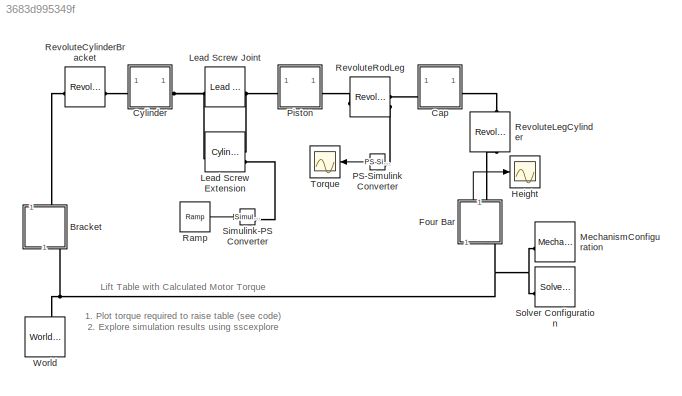
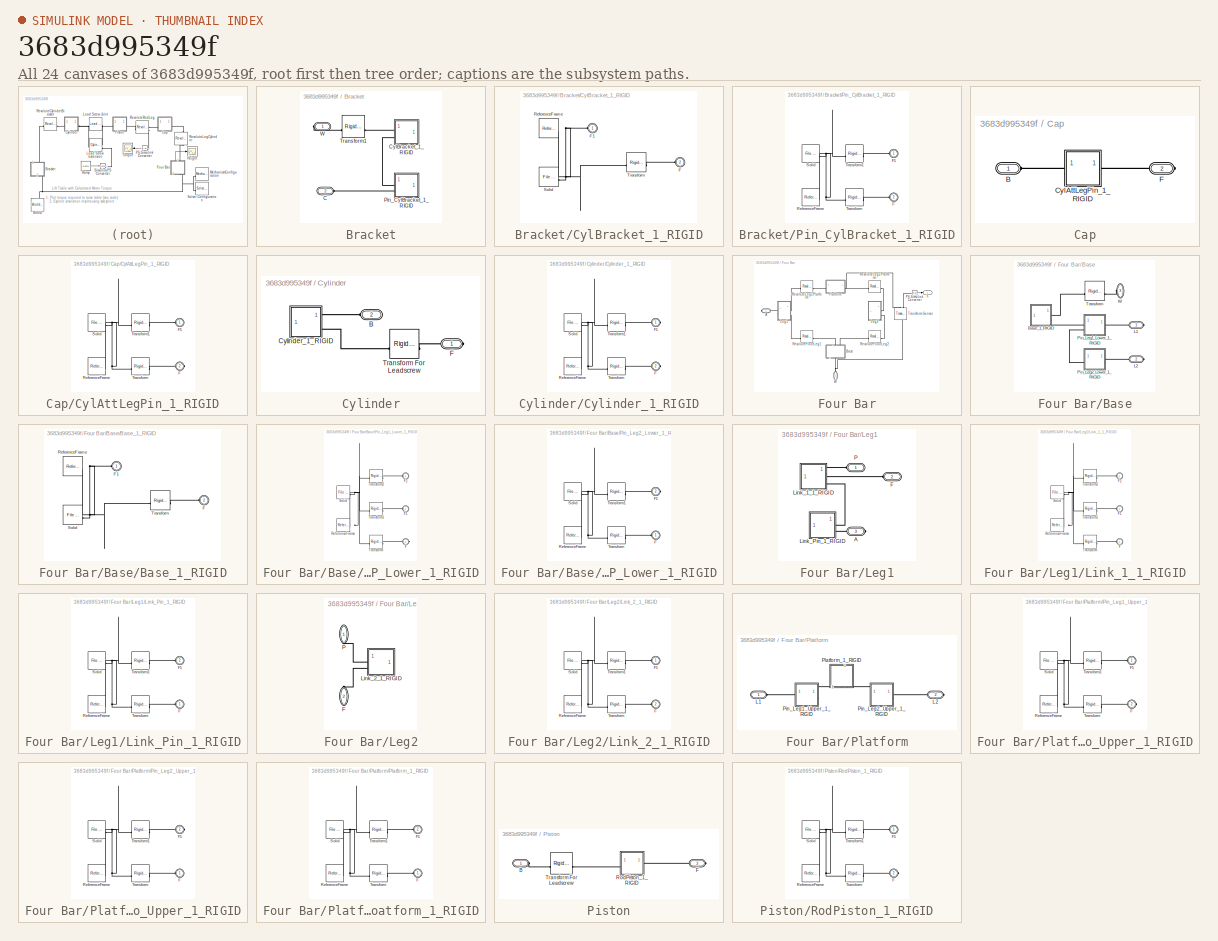
[diagram: thumbnail index - all 24 canvases of the model, root first then tree order]
MODEL slx_3683d995349f
KIND model
CONFIG AbsTol = auto
CONFIG EnableMultiTasking = off
CONFIG FixedStep = auto
CONFIG MaxStep = 0.01
CONFIG MinStep = auto
CONFIG RelTol = 1e-3
CONFIG SampleTimeConstraint = Unconstrained
CONFIG SolverName = ode15s
CONFIG StartTime = 0.0
CONFIG StopTime = 10
WORKSPACE source: external: MATLAB File  (data not in archive)
BLOCK [SubSystem] Bracket
  NameLocation = right
BLOCK [PMIOPort] Bracket/C
  Port = 2
  Side = Left
BLOCK [SubSystem] Bracket/CylBracket_1_RIGID
BLOCK [PMIOPort] Bracket/CylBracket_1_RIGID/F
  Port = 2
  Side = Left
BLOCK [PMIOPort] Bracket/CylBracket_1_RIGID/F1
  Side = Left
BLOCK [Reference] Bracket/CylBracket_1_RIGID/ReferenceFrame  REF=sm_lib/Frames and
Transforms/Reference
Frame
  SourceBlock = sm_lib/Frames and\nTransforms/Reference\nFrame
  SourceType = Reference\nFrame
BLOCK [Reference] Bracket/CylBracket_1_RIGID/Solid  REF=sm_lib/Body Elements/File Solid
  SourceBlock = sm_lib/Body Elements/File Solid
  SourceType = File Solid
BLOCK [Reference] Bracket/CylBracket_1_RIGID/Transform  REF=sm_lib/Frames and
Transforms/Rigid
Transform
  SourceBlock = sm_lib/Frames and\nTransforms/Rigid\nTransform
  SourceType = Rigid\nTransform
BLOCK [SubSystem] Bracket/Pin_CylBracket_1_RIGID
BLOCK [PMIOPort] Bracket/Pin_CylBracket_1_RIGID/F
  Port = 2
  Side = Left
BLOCK [PMIOPort] Bracket/Pin_CylBracket_1_RIGID/F1
  Side = Left
BLOCK [Reference] Bracket/Pin_CylBracket_1_RIGID/ReferenceFrame  REF=sm_lib/Frames and
Transforms/Reference
Frame
  SourceBlock = sm_lib/Frames and\nTransforms/Reference\nFrame
  SourceType = Reference\nFrame
BLOCK [Reference] Bracket/Pin_CylBracket_1_RIGID/Solid  REF=sm_lib/Body Elements/File Solid
  SourceBlock = sm_lib/Body Elements/File Solid
  SourceType = File Solid
BLOCK [Reference] Bracket/Pin_CylBracket_1_RIGID/Transform  REF=sm_lib/Frames and
Transforms/Rigid
Transform
  SourceBlock = sm_lib/Frames and\nTransforms/Rigid\nTransform
  SourceType = Rigid\nTransform
BLOCK [Reference] Bracket/Pin_CylBracket_1_RIGID/Transform1  REF=sm_lib/Frames and
Transforms/Rigid
Transform
  SourceBlock = sm_lib/Frames and\nTransforms/Rigid\nTransform
  SourceType = Rigid\nTransform
BLOCK [Reference] Bracket/Transform1  REF=sm_lib/Frames and
Transforms/Rigid
Transform
  NameLocation = top
  SourceBlock = sm_lib/Frames and\nTransforms/Rigid\nTransform
  SourceType = Rigid\nTransform
BLOCK [PMIOPort] Bracket/W
  NameLocation = top
  Side = Right
BLOCK [SubSystem] Cap
BLOCK [PMIOPort] Cap/B
  Side = Left
BLOCK [SubSystem] Cap/CylAttLegPin_1_RIGID
BLOCK [PMIOPort] Cap/CylAttLegPin_1_RIGID/F
  Port = 2
  Side = Right
BLOCK [PMIOPort] Cap/CylAttLegPin_1_RIGID/F1
  Side = Left
BLOCK [Reference] Cap/CylAttLegPin_1_RIGID/ReferenceFrame  REF=sm_lib/Frames and
Transforms/Reference
Frame
  SourceBlock = sm_lib/Frames and\nTransforms/Reference\nFrame
  SourceType = Reference\nFrame
BLOCK [Reference] Cap/CylAttLegPin_1_RIGID/Solid  REF=sm_lib/Body Elements/File Solid
  SourceBlock = sm_lib/Body Elements/File Solid
  SourceType = File Solid
BLOCK [Reference] Cap/CylAttLegPin_1_RIGID/Transform  REF=sm_lib/Frames and
Transforms/Rigid
Transform
  SourceBlock = sm_lib/Frames and\nTransforms/Rigid\nTransform
  SourceType = Rigid\nTransform
BLOCK [Reference] Cap/CylAttLegPin_1_RIGID/Transform1  REF=sm_lib/Frames and
Transforms/Rigid
Transform
  SourceBlock = sm_lib/Frames and\nTransforms/Rigid\nTransform
  SourceType = Rigid\nTransform
BLOCK [PMIOPort] Cap/F
  Port = 2
  Side = Right
BLOCK [SubSystem] Cylinder
BLOCK [PMIOPort] Cylinder/B
  NameLocation = top
  Port = 2
  Side = Left
BLOCK [SubSystem] Cylinder/Cylinder_1_RIGID
BLOCK [PMIOPort] Cylinder/Cylinder_1_RIGID/F
  Port = 2
  Side = Right
BLOCK [PMIOPort] Cylinder/Cylinder_1_RIGID/F1
  Side = Right
BLOCK [Reference] Cylinder/Cylinder_1_RIGID/ReferenceFrame  REF=sm_lib/Frames and
Transforms/Reference
Frame
  SourceBlock = sm_lib/Frames and\nTransforms/Reference\nFrame
  SourceType = Reference\nFrame
BLOCK [Reference] Cylinder/Cylinder_1_RIGID/Solid  REF=sm_lib/Body Elements/File Solid
  SourceBlock = sm_lib/Body Elements/File Solid
  SourceType = File Solid
BLOCK [Reference] Cylinder/Cylinder_1_RIGID/Transform  REF=sm_lib/Frames and
Transforms/Rigid
Transform
  SourceBlock = sm_lib/Frames and\nTransforms/Rigid\nTransform
  SourceType = Rigid\nTransform
BLOCK [Reference] Cylinder/Cylinder_1_RIGID/Transform1  REF=sm_lib/Frames and
Transforms/Rigid
Transform
  SourceBlock = sm_lib/Frames and\nTransforms/Rigid\nTransform
  SourceType = Rigid\nTransform
BLOCK [PMIOPort] Cylinder/F
  Side = Right
BLOCK [Reference] Cylinder/Transform For Leadscrew  REF=sm_lib/Frames and
Transforms/Rigid
Transform
  SourceBlock = sm_lib/Frames and\nTransforms/Rigid\nTransform
  SourceType = Rigid\nTransform
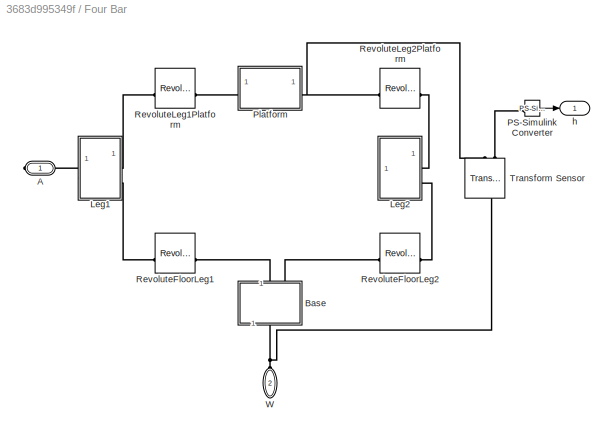
BLOCK [SubSystem] Four Bar
  NameLocation = left
BLOCK [PMIOPort] Four Bar/A
  Side = Right
BLOCK [SubSystem] Four Bar/Base
  NameLocation = right
BLOCK [SubSystem] Four Bar/Base/Base_1_RIGID
BLOCK [PMIOPort] Four Bar/Base/Base_1_RIGID/F
  Port = 2
  Side = Left
BLOCK [PMIOPort] Four Bar/Base/Base_1_RIGID/F1
  Side = Left
BLOCK [Reference] Four Bar/Base/Base_1_RIGID/ReferenceFrame  REF=sm_lib/Frames and
Transforms/Reference
Frame
  SourceBlock = sm_lib/Frames and\nTransforms/Reference\nFrame
  SourceType = Reference\nFrame
BLOCK [Reference] Four Bar/Base/Base_1_RIGID/Solid  REF=sm_lib/Body Elements/File Solid
  SourceBlock = sm_lib/Body Elements/File Solid
  SourceType = File Solid
BLOCK [Reference] Four Bar/Base/Base_1_RIGID/Transform  REF=sm_lib/Frames and
Transforms/Rigid
Transform
  SourceBlock = sm_lib/Frames and\nTransforms/Rigid\nTransform
  SourceType = Rigid\nTransform
BLOCK [PMIOPort] Four Bar/Base/L1
  Side = Right
BLOCK [PMIOPort] Four Bar/Base/L2
  Port = 2
  Side = Right
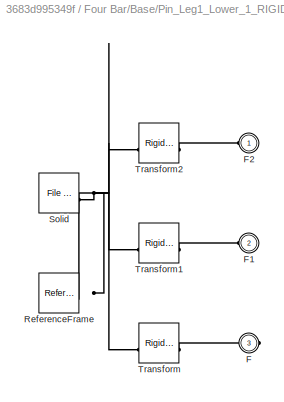
BLOCK [SubSystem] Four Bar/Base/Pin_Leg1_Lower_1_RIGID
BLOCK [PMIOPort] Four Bar/Base/Pin_Leg1_Lower_1_RIGID/F
  Port = 3
  Side = Right
BLOCK [PMIOPort] Four Bar/Base/Pin_Leg1_Lower_1_RIGID/F1
  Port = 2
  Side = Left
BLOCK [PMIOPort] Four Bar/Base/Pin_Leg1_Lower_1_RIGID/F2
  Side = Left
BLOCK [Reference] Four Bar/Base/Pin_Leg1_Lower_1_RIGID/ReferenceFrame  REF=sm_lib/Frames and
Transforms/Reference
Frame
  SourceBlock = sm_lib/Frames and\nTransforms/Reference\nFrame
  SourceType = Reference\nFrame
BLOCK [Reference] Four Bar/Base/Pin_Leg1_Lower_1_RIGID/Solid  REF=sm_lib/Body Elements/File Solid
  SourceBlock = sm_lib/Body Elements/File Solid
  SourceType = File Solid
BLOCK [Reference] Four Bar/Base/Pin_Leg1_Lower_1_RIGID/Transform  REF=sm_lib/Frames and
Transforms/Rigid
Transform
  SourceBlock = sm_lib/Frames and\nTransforms/Rigid\nTransform
  SourceType = Rigid\nTransform
BLOCK [Reference] Four Bar/Base/Pin_Leg1_Lower_1_RIGID/Transform1  REF=sm_lib/Frames and
Transforms/Rigid
Transform
  SourceBlock = sm_lib/Frames and\nTransforms/Rigid\nTransform
  SourceType = Rigid\nTransform
BLOCK [Reference] Four Bar/Base/Pin_Leg1_Lower_1_RIGID/Transform2  REF=sm_lib/Frames and
Transforms/Rigid
Transform
  SourceBlock = sm_lib/Frames and\nTransforms/Rigid\nTransform
  SourceType = Rigid\nTransform
BLOCK [SubSystem] Four Bar/Base/Pin_Leg2_Lower_1_RIGID
BLOCK [PMIOPort] Four Bar/Base/Pin_Leg2_Lower_1_RIGID/F
  Side = Left
BLOCK [PMIOPort] Four Bar/Base/Pin_Leg2_Lower_1_RIGID/F1
  Port = 2
  Side = Right
BLOCK [Reference] Four Bar/Base/Pin_Leg2_Lower_1_RIGID/ReferenceFrame  REF=sm_lib/Frames and
Transforms/Reference
Frame
  SourceBlock = sm_lib/Frames and\nTransforms/Reference\nFrame
  SourceType = Reference\nFrame
BLOCK [Reference] Four Bar/Base/Pin_Leg2_Lower_1_RIGID/Solid  REF=sm_lib/Body Elements/File Solid
  SourceBlock = sm_lib/Body Elements/File Solid
  SourceType = File Solid
BLOCK [Reference] Four Bar/Base/Pin_Leg2_Lower_1_RIGID/Transform  REF=sm_lib/Frames and
Transforms/Rigid
Transform
  SourceBlock = sm_lib/Frames and\nTransforms/Rigid\nTransform
  SourceType = Rigid\nTransform
BLOCK [Reference] Four Bar/Base/Pin_Leg2_Lower_1_RIGID/Transform1  REF=sm_lib/Frames and
Transforms/Rigid
Transform
  SourceBlock = sm_lib/Frames and\nTransforms/Rigid\nTransform
  SourceType = Rigid\nTransform
BLOCK [Reference] Four Bar/Base/Transform  REF=sm_lib/Frames and
Transforms/Rigid
Transform
  SourceBlock = sm_lib/Frames and\nTransforms/Rigid\nTransform
  SourceType = Rigid\nTransform
BLOCK [PMIOPort] Four Bar/Base/W
  NameLocation = top
  Port = 3
  Side = Left
BLOCK [SubSystem] Four Bar/Leg1
BLOCK [PMIOPort] Four Bar/Leg1/A
  Port = 3
  Side = Right
BLOCK [PMIOPort] Four Bar/Leg1/F
  NameLocation = top
  Port = 2
  Side = Left
BLOCK [SubSystem] Four Bar/Leg1/Link_1_1_RIGID
BLOCK [PMIOPort] Four Bar/Leg1/Link_1_1_RIGID/F
  Port = 3
  Side = Left
BLOCK [PMIOPort] Four Bar/Leg1/Link_1_1_RIGID/F1
  Port = 2
  Side = Left
BLOCK [PMIOPort] Four Bar/Leg1/Link_1_1_RIGID/F2
  Side = Left
BLOCK [Reference] Four Bar/Leg1/Link_1_1_RIGID/ReferenceFrame  REF=sm_lib/Frames and
Transforms/Reference
Frame
  SourceBlock = sm_lib/Frames and\nTransforms/Reference\nFrame
  SourceType = Reference\nFrame
BLOCK [Reference] Four Bar/Leg1/Link_1_1_RIGID/Solid  REF=sm_lib/Body Elements/File Solid
  SourceBlock = sm_lib/Body Elements/File Solid
  SourceType = File Solid
BLOCK [Reference] Four Bar/Leg1/Link_1_1_RIGID/Transform  REF=sm_lib/Frames and
Transforms/Rigid
Transform
  SourceBlock = sm_lib/Frames and\nTransforms/Rigid\nTransform
  SourceType = Rigid\nTransform
BLOCK [Reference] Four Bar/Leg1/Link_1_1_RIGID/Transform1  REF=sm_lib/Frames and
Transforms/Rigid
Transform
  SourceBlock = sm_lib/Frames and\nTransforms/Rigid\nTransform
  SourceType = Rigid\nTransform
BLOCK [Reference] Four Bar/Leg1/Link_1_1_RIGID/Transform2  REF=sm_lib/Frames and
Transforms/Rigid
Transform
  SourceBlock = sm_lib/Frames and\nTransforms/Rigid\nTransform
  SourceType = Rigid\nTransform
BLOCK [SubSystem] Four Bar/Leg1/Link_Pin_1_RIGID
  NameLocation = top
BLOCK [PMIOPort] Four Bar/Leg1/Link_Pin_1_RIGID/F
  Side = Left
BLOCK [PMIOPort] Four Bar/Leg1/Link_Pin_1_RIGID/F1
  Port = 2
  Side = Left
BLOCK [Reference] Four Bar/Leg1/Link_Pin_1_RIGID/ReferenceFrame  REF=sm_lib/Frames and
Transforms/Reference
Frame
  SourceBlock = sm_lib/Frames and\nTransforms/Reference\nFrame
  SourceType = Reference\nFrame
BLOCK [Reference] Four Bar/Leg1/Link_Pin_1_RIGID/Solid  REF=sm_lib/Body Elements/File Solid
  SourceBlock = sm_lib/Body Elements/File Solid
  SourceType = File Solid
BLOCK [Reference] Four Bar/Leg1/Link_Pin_1_RIGID/Transform  REF=sm_lib/Frames and
Transforms/Rigid
Transform
  SourceBlock = sm_lib/Frames and\nTransforms/Rigid\nTransform
  SourceType = Rigid\nTransform
BLOCK [Reference] Four Bar/Leg1/Link_Pin_1_RIGID/Transform1  REF=sm_lib/Frames and
Transforms/Rigid
Transform
  SourceBlock = sm_lib/Frames and\nTransforms/Rigid\nTransform
  SourceType = Rigid\nTransform
BLOCK [PMIOPort] Four Bar/Leg1/P
  NameLocation = top
  Side = Left
BLOCK [SubSystem] Four Bar/Leg2
BLOCK [PMIOPort] Four Bar/Leg2/F
  NameLocation = right
  Port = 2
  Side = Left
BLOCK [SubSystem] Four Bar/Leg2/Link_2_1_RIGID
BLOCK [PMIOPort] Four Bar/Leg2/Link_2_1_RIGID/F
  Port = 2
  Side = Left
BLOCK [PMIOPort] Four Bar/Leg2/Link_2_1_RIGID/F1
  Side = Left
BLOCK [Reference] Four Bar/Leg2/Link_2_1_RIGID/ReferenceFrame  REF=sm_lib/Frames and
Transforms/Reference
Frame
  SourceBlock = sm_lib/Frames and\nTransforms/Reference\nFrame
  SourceType = Reference\nFrame
BLOCK [Reference] Four Bar/Leg2/Link_2_1_RIGID/Solid  REF=sm_lib/Body Elements/File Solid
  SourceBlock = sm_lib/Body Elements/File Solid
  SourceType = File Solid
BLOCK [Reference] Four Bar/Leg2/Link_2_1_RIGID/Transform  REF=sm_lib/Frames and
Transforms/Rigid
Transform
  SourceBlock = sm_lib/Frames and\nTransforms/Rigid\nTransform
  SourceType = Rigid\nTransform
BLOCK [Reference] Four Bar/Leg2/Link_2_1_RIGID/Transform1  REF=sm_lib/Frames and
Transforms/Rigid
Transform
  SourceBlock = sm_lib/Frames and\nTransforms/Rigid\nTransform
  SourceType = Rigid\nTransform
BLOCK [PMIOPort] Four Bar/Leg2/P
  NameLocation = right
  Side = Left
BLOCK [Reference] Four Bar/PS-Simulink Converter  REF=nesl_utility/PS-Simulink
Converter
  NameLocation = top
  SourceBlock = nesl_utility/PS-Simulink\nConverter
  SourceType = PS-Simulink\nConverter
BLOCK [SubSystem] Four Bar/Platform
BLOCK [PMIOPort] Four Bar/Platform/L1
  Side = Left
BLOCK [PMIOPort] Four Bar/Platform/L2
  Port = 2
  Side = Right
BLOCK [SubSystem] Four Bar/Platform/Pin_Leg1_Upper_1_RIGID
BLOCK [PMIOPort] Four Bar/Platform/Pin_Leg1_Upper_1_RIGID/F
  Port = 2
  Side = Right
BLOCK [PMIOPort] Four Bar/Platform/Pin_Leg1_Upper_1_RIGID/F1
  Side = Left
BLOCK [Reference] Four Bar/Platform/Pin_Leg1_Upper_1_RIGID/ReferenceFrame  REF=sm_lib/Frames and
Transforms/Reference
Frame
  SourceBlock = sm_lib/Frames and\nTransforms/Reference\nFrame
  SourceType = Reference\nFrame
BLOCK [Reference] Four Bar/Platform/Pin_Leg1_Upper_1_RIGID/Solid  REF=sm_lib/Body Elements/File Solid
  SourceBlock = sm_lib/Body Elements/File Solid
  SourceType = File Solid
BLOCK [Reference] Four Bar/Platform/Pin_Leg1_Upper_1_RIGID/Transform  REF=sm_lib/Frames and
Transforms/Rigid
Transform
  SourceBlock = sm_lib/Frames and\nTransforms/Rigid\nTransform
  SourceType = Rigid\nTransform
BLOCK [Reference] Four Bar/Platform/Pin_Leg1_Upper_1_RIGID/Transform1  REF=sm_lib/Frames and
Transforms/Rigid
Transform
  SourceBlock = sm_lib/Frames and\nTransforms/Rigid\nTransform
  SourceType = Rigid\nTransform
BLOCK [SubSystem] Four Bar/Platform/Pin_Leg2_Upper_1_RIGID
BLOCK [PMIOPort] Four Bar/Platform/Pin_Leg2_Upper_1_RIGID/F
  Side = Left
BLOCK [PMIOPort] Four Bar/Platform/Pin_Leg2_Upper_1_RIGID/F1
  Port = 2
  Side = Right
BLOCK [Reference] Four Bar/Platform/Pin_Leg2_Upper_1_RIGID/ReferenceFrame  REF=sm_lib/Frames and
Transforms/Reference
Frame
  SourceBlock = sm_lib/Frames and\nTransforms/Reference\nFrame
  SourceType = Reference\nFrame
BLOCK [Reference] Four Bar/Platform/Pin_Leg2_Upper_1_RIGID/Solid  REF=sm_lib/Body Elements/File Solid
  SourceBlock = sm_lib/Body Elements/File Solid
  SourceType = File Solid
BLOCK [Reference] Four Bar/Platform/Pin_Leg2_Upper_1_RIGID/Transform  REF=sm_lib/Frames and
Transforms/Rigid
Transform
  SourceBlock = sm_lib/Frames and\nTransforms/Rigid\nTransform
  SourceType = Rigid\nTransform
BLOCK [Reference] Four Bar/Platform/Pin_Leg2_Upper_1_RIGID/Transform1  REF=sm_lib/Frames and
Transforms/Rigid
Transform
  SourceBlock = sm_lib/Frames and\nTransforms/Rigid\nTransform
  SourceType = Rigid\nTransform
BLOCK [SubSystem] Four Bar/Platform/Platform_1_RIGID
  NameLocation = right
BLOCK [PMIOPort] Four Bar/Platform/Platform_1_RIGID/F
  Side = Left
BLOCK [PMIOPort] Four Bar/Platform/Platform_1_RIGID/F1
  Port = 2
  Side = Left
BLOCK [Reference] Four Bar/Platform/Platform_1_RIGID/ReferenceFrame  REF=sm_lib/Frames and
Transforms/Reference
Frame
  SourceBlock = sm_lib/Frames and\nTransforms/Reference\nFrame
  SourceType = Reference\nFrame
BLOCK [Reference] Four Bar/Platform/Platform_1_RIGID/Solid  REF=sm_lib/Body Elements/File Solid
  SourceBlock = sm_lib/Body Elements/File Solid
  SourceType = File Solid
BLOCK [Reference] Four Bar/Platform/Platform_1_RIGID/Transform  REF=sm_lib/Frames and
Transforms/Rigid
Transform
  SourceBlock = sm_lib/Frames and\nTransforms/Rigid\nTransform
  SourceType = Rigid\nTransform
BLOCK [Reference] Four Bar/Platform/Platform_1_RIGID/Transform1  REF=sm_lib/Frames and
Transforms/Rigid
Transform
  SourceBlock = sm_lib/Frames and\nTransforms/Rigid\nTransform
  SourceType = Rigid\nTransform
BLOCK [Reference] Four Bar/RevoluteFloorLeg1  REF=sm_lib/Joints/Revolute Joint
  SourceBlock = sm_lib/Joints/Revolute Joint
  SourceType = Revolute Joint
BLOCK [Reference] Four Bar/RevoluteFloorLeg2  REF=sm_lib/Joints/Revolute Joint
  SourceBlock = sm_lib/Joints/Revolute Joint
  SourceType = Revolute Joint
BLOCK [Reference] Four Bar/RevoluteLeg1Platform  REF=sm_lib/Joints/Revolute Joint
  NameLocation = top
  SourceBlock = sm_lib/Joints/Revolute Joint
  SourceType = Revolute Joint
BLOCK [Reference] Four Bar/RevoluteLeg2Platform  REF=sm_lib/Joints/Revolute Joint
  NameLocation = top
  SourceBlock = sm_lib/Joints/Revolute Joint
  SourceType = Revolute Joint
BLOCK [Reference] Four Bar/Transform Sensor  REF=sm_lib/Frames and
Transforms/Transform
Sensor
  NameLocation = right
  SourceBlock = sm_lib/Frames and\nTransforms/Transform\nSensor
  SourceType = Transform\nSensor
BLOCK [PMIOPort] Four Bar/W
  NameLocation = right
  Port = 2
  Side = Left
BLOCK [Outport] Four Bar/h
  VectorParamsAs1DForOutWhenUnconnected = off
BLOCK [Scope] Height
  Floating = off
  NumInputPorts = 1
  ScopeSpecificationString = Simulink.scopes.TimeScopeBlockCfg('CurrentConfiguration', extmgr.ConfigurationSet(extmgr.Configuration('Core','General UI',true),extmgr.Configuration('Core','Source UI',true),extmgr.Configuration('Sources','WiredSimulink',true,'DataLoggingVariableName','ScopeData1','DataLoggingLimitDataPoints',true,'DataLoggingSaveFormat','Array','DataLoggingDecimation','1','DataLoggingDecimateData',true),extmgr.C...<+212ch>
BLOCK [Reference] Lead Screw Extension  REF=sm_lib/Joints/Cylindrical
Joint
  SourceBlock = sm_lib/Joints/Cylindrical\nJoint
  SourceType = Cylindrical\nJoint
BLOCK [Reference] Lead Screw Joint  REF=sm_lib/Joints/Lead Screw
Joint
  NameLocation = top
  SourceBlock = sm_lib/Joints/Lead Screw\nJoint
  SourceType = Lead Screw\nJoint
BLOCK [Reference] MechanismConfiguration  REF=sm_lib/Utilities/Mechanism
Configuration
  SourceBlock = sm_lib/Utilities/Mechanism\nConfiguration
  SourceType = Mechanism\nConfiguration
BLOCK [Reference] PS-Simulink Converter  REF=nesl_utility/PS-Simulink
Converter
  SourceBlock = nesl_utility/PS-Simulink\nConverter
  SourceType = PS-Simulink\nConverter
BLOCK [SubSystem] Piston
BLOCK [PMIOPort] Piston/B
  Side = Left
BLOCK [PMIOPort] Piston/F
  Port = 2
  Side = Right
BLOCK [SubSystem] Piston/RodPiston_1_RIGID
BLOCK [PMIOPort] Piston/RodPiston_1_RIGID/F
  Port = 2
  Side = Right
BLOCK [PMIOPort] Piston/RodPiston_1_RIGID/F1
  Side = Left
BLOCK [Reference] Piston/RodPiston_1_RIGID/ReferenceFrame  REF=sm_lib/Frames and
Transforms/Reference
Frame
  SourceBlock = sm_lib/Frames and\nTransforms/Reference\nFrame
  SourceType = Reference\nFrame
BLOCK [Reference] Piston/RodPiston_1_RIGID/Solid  REF=sm_lib/Body Elements/File Solid
  SourceBlock = sm_lib/Body Elements/File Solid
  SourceType = File Solid
BLOCK [Reference] Piston/RodPiston_1_RIGID/Transform  REF=sm_lib/Frames and
Transforms/Rigid
Transform
  SourceBlock = sm_lib/Frames and\nTransforms/Rigid\nTransform
  SourceType = Rigid\nTransform
BLOCK [Reference] Piston/RodPiston_1_RIGID/Transform1  REF=sm_lib/Frames and
Transforms/Rigid
Transform
  SourceBlock = sm_lib/Frames and\nTransforms/Rigid\nTransform
  SourceType = Rigid\nTransform
BLOCK [Reference] Piston/Transform For Leadscrew  REF=sm_lib/Frames and
Transforms/Rigid
Transform
  SourceBlock = sm_lib/Frames and\nTransforms/Rigid\nTransform
  SourceType = Rigid\nTransform
BLOCK [Reference] Ramp  REF=simulink/Sources/Ramp
  SourceBlock = simulink/Sources/Ramp
  SourceType = Ramp
BLOCK [Reference] RevoluteCylinderBracket  REF=sm_lib/Joints/Revolute Joint
  NameLocation = top
  SourceBlock = sm_lib/Joints/Revolute Joint
  SourceType = Revolute Joint
BLOCK [Reference] RevoluteLegCylinder  REF=sm_lib/Joints/Revolute Joint
  NameLocation = right
  SourceBlock = sm_lib/Joints/Revolute Joint
  SourceType = Revolute Joint
BLOCK [Reference] RevoluteRodLeg  REF=sm_lib/Joints/Revolute Joint
  NameLocation = top
  SourceBlock = sm_lib/Joints/Revolute Joint
  SourceType = Revolute Joint
BLOCK [Reference] Simulink-PS Converter  REF=nesl_utility/Simulink-PS
Converter
  SourceBlock = nesl_utility/Simulink-PS\nConverter
  SourceType = Simulink-PS\nConverter
BLOCK [Reference] Solver Configuration  REF=nesl_utility/Solver
Configuration
  SourceBlock = nesl_utility/Solver\nConfiguration
  SourceType = Solver\nConfiguration
BLOCK [Scope] Torque
  Floating = off
  NumInputPorts = 1
  ScopeSpecificationString = Simulink.scopes.TimeScopeBlockCfg('CurrentConfiguration', extmgr.ConfigurationSet(extmgr.Configuration('Core','General UI',true),extmgr.Configuration('Core','Source UI',true),extmgr.Configuration('Sources','WiredSimulink',true),extmgr.Configuration('Visuals','Time Domain',true,'SerializedDisplays',{struct('MinYLimReal','-45.63681','MaxYLimReal','42.3174','YLabelReal','','MinYLimMag','0.00000','Max...<+1384ch>
BLOCK [Reference] World  REF=sm_lib/Frames and
Transforms/World Frame
  NameLocation = right
  SourceBlock = sm_lib/Frames and\nTransforms/World Frame
  SourceType = World Frame
ANNOTATION (root): 1. Plot torque required to raise table ( see code ) 2. Explore simulation results using sscexplore
ANNOTATION (root): Lift Table with Calculated Motor Torque
LINE Four Bar/PS-Simulink Converter:1 -> Four Bar/h:1
LINE Four Bar:1 -> Height:1
LINE PS-Simulink Converter:1 -> Torque:1
LINE Ramp:1 -> Simulink-PS Converter:1
PLINE Bracket/C:RConn1 -- Bracket/Pin_CylBracket_1_RIGID:LConn2
PNET net1: Bracket/CylBracket_1_RIGID/F1:RConn1 -- Bracket/CylBracket_1_RIGID/ReferenceFrame:RConn1 -- Bracket/CylBracket_1_RIGID/Solid:RConn1 -- Bracket/CylBracket_1_RIGID/Transform:LConn1
PLINE Bracket/CylBracket_1_RIGID/F:RConn1 -- Bracket/CylBracket_1_RIGID/Transform:RConn1
PLINE Bracket/CylBracket_1_RIGID:LConn1 -- Bracket/Transform1:RConn1
PLINE Bracket/CylBracket_1_RIGID:LConn2 -- Bracket/Pin_CylBracket_1_RIGID:LConn1
PLINE Bracket/Pin_CylBracket_1_RIGID/F1:RConn1 -- Bracket/Pin_CylBracket_1_RIGID/Transform1:RConn1
PLINE Bracket/Pin_CylBracket_1_RIGID/F:RConn1 -- Bracket/Pin_CylBracket_1_RIGID/Transform:RConn1
PNET net2: Bracket/Pin_CylBracket_1_RIGID/ReferenceFrame:RConn1 -- Bracket/Pin_CylBracket_1_RIGID/Solid:RConn1 -- Bracket/Pin_CylBracket_1_RIGID/Transform1:LConn1 -- Bracket/Pin_CylBracket_1_RIGID/Transform:LConn1
PLINE Bracket/Transform1:LConn1 -- Bracket/W:RConn1
PLINE Bracket:LConn1 -- RevoluteCylinderBracket:RConn1
PNET net3: Bracket:RConn1 -- Four Bar:LConn1 -- MechanismConfiguration:RConn1 -- Solver Configuration:RConn1 -- World:RConn1
PLINE Cap/B:RConn1 -- Cap/CylAttLegPin_1_RIGID:LConn1
PLINE Cap/CylAttLegPin_1_RIGID/F1:RConn1 -- Cap/CylAttLegPin_1_RIGID/Transform1:RConn1
PLINE Cap/CylAttLegPin_1_RIGID/F:RConn1 -- Cap/CylAttLegPin_1_RIGID/Transform:RConn1
PNET net4: Cap/CylAttLegPin_1_RIGID/ReferenceFrame:RConn1 -- Cap/CylAttLegPin_1_RIGID/Solid:RConn1 -- Cap/CylAttLegPin_1_RIGID/Transform1:LConn1 -- Cap/CylAttLegPin_1_RIGID/Transform:LConn1
PLINE Cap/CylAttLegPin_1_RIGID:RConn1 -- Cap/F:RConn1
PLINE Cap:LConn1 -- RevoluteRodLeg:RConn1
PLINE Cap:RConn1 -- RevoluteLegCylinder:LConn1
PLINE Cylinder/B:RConn1 -- Cylinder/Cylinder_1_RIGID:RConn1
PLINE Cylinder/Cylinder_1_RIGID/F1:RConn1 -- Cylinder/Cylinder_1_RIGID/Transform1:RConn1
PLINE Cylinder/Cylinder_1_RIGID/F:RConn1 -- Cylinder/Cylinder_1_RIGID/Transform:RConn1
PNET net5: Cylinder/Cylinder_1_RIGID/ReferenceFrame:RConn1 -- Cylinder/Cylinder_1_RIGID/Solid:RConn1 -- Cylinder/Cylinder_1_RIGID/Transform1:LConn1 -- Cylinder/Cylinder_1_RIGID/Transform:LConn1
PLINE Cylinder/Cylinder_1_RIGID:RConn2 -- Cylinder/Transform For Leadscrew:RConn1
PLINE Cylinder/F:RConn1 -- Cylinder/Transform For Leadscrew:LConn1
PLINE Cylinder:LConn1 -- RevoluteCylinderBracket:LConn1
PNET net6: Cylinder:RConn1 -- Lead Screw Extension:RConn1 -- Lead Screw Joint:RConn1
PLINE Four Bar/A:RConn1 -- Four Bar/Leg1:RConn1
PNET net7: Four Bar/Base/Base_1_RIGID/F1:RConn1 -- Four Bar/Base/Base_1_RIGID/ReferenceFrame:RConn1 -- Four Bar/Base/Base_1_RIGID/Solid:RConn1 -- Four Bar/Base/Base_1_RIGID/Transform:LConn1
PLINE Four Bar/Base/Base_1_RIGID/F:RConn1 -- Four Bar/Base/Base_1_RIGID/Transform:RConn1
PLINE Four Bar/Base/Base_1_RIGID:LConn1 -- Four Bar/Base/Transform:RConn1
PLINE Four Bar/Base/Base_1_RIGID:LConn2 -- Four Bar/Base/Pin_Leg1_Lower_1_RIGID:LConn1
PLINE Four Bar/Base/L1:RConn1 -- Four Bar/Base/Pin_Leg1_Lower_1_RIGID:RConn1
PLINE Four Bar/Base/L2:RConn1 -- Four Bar/Base/Pin_Leg2_Lower_1_RIGID:RConn1
PLINE Four Bar/Base/Pin_Leg1_Lower_1_RIGID/F1:RConn1 -- Four Bar/Base/Pin_Leg1_Lower_1_RIGID/Transform1:RConn1
PLINE Four Bar/Base/Pin_Leg1_Lower_1_RIGID/F2:RConn1 -- Four Bar/Base/Pin_Leg1_Lower_1_RIGID/Transform2:RConn1
PLINE Four Bar/Base/Pin_Leg1_Lower_1_RIGID/F:RConn1 -- Four Bar/Base/Pin_Leg1_Lower_1_RIGID/Transform:RConn1
PNET net8: Four Bar/Base/Pin_Leg1_Lower_1_RIGID/ReferenceFrame:RConn1 -- Four Bar/Base/Pin_Leg1_Lower_1_RIGID/Solid:RConn1 -- Four Bar/Base/Pin_Leg1_Lower_1_RIGID/Transform1:LConn1 -- Four Bar/Base/Pin_Leg1_Lower_1_RIGID/Transform2:LConn1 -- Four Bar/Base/Pin_Leg1_Lower_1_RIGID/Transform:LConn1
PLINE Four Bar/Base/Pin_Leg1_Lower_1_RIGID:LConn2 -- Four Bar/Base/Pin_Leg2_Lower_1_RIGID:LConn1
PLINE Four Bar/Base/Pin_Leg2_Lower_1_RIGID/F1:RConn1 -- Four Bar/Base/Pin_Leg2_Lower_1_RIGID/Transform1:RConn1
PLINE Four Bar/Base/Pin_Leg2_Lower_1_RIGID/F:RConn1 -- Four Bar/Base/Pin_Leg2_Lower_1_RIGID/Transform:RConn1
PNET net9: Four Bar/Base/Pin_Leg2_Lower_1_RIGID/ReferenceFrame:RConn1 -- Four Bar/Base/Pin_Leg2_Lower_1_RIGID/Solid:RConn1 -- Four Bar/Base/Pin_Leg2_Lower_1_RIGID/Transform1:LConn1 -- Four Bar/Base/Pin_Leg2_Lower_1_RIGID/Transform:LConn1
PLINE Four Bar/Base/Transform:LConn1 -- Four Bar/Base/W:RConn1
PNET net10: Four Bar/Base:LConn1 -- Four Bar/Transform Sensor:LConn1 -- Four Bar/W:RConn1
PLINE Four Bar/Base:RConn1 -- Four Bar/RevoluteFloorLeg1:LConn1
PLINE Four Bar/Base:RConn2 -- Four Bar/RevoluteFloorLeg2:LConn1
PLINE Four Bar/Leg1/A:RConn1 -- Four Bar/Leg1/Link_Pin_1_RIGID:LConn2
PLINE Four Bar/Leg1/F:RConn1 -- Four Bar/Leg1/Link_1_1_RIGID:LConn2
PLINE Four Bar/Leg1/Link_1_1_RIGID/F1:RConn1 -- Four Bar/Leg1/Link_1_1_RIGID/Transform1:RConn1
PLINE Four Bar/Leg1/Link_1_1_RIGID/F2:RConn1 -- Four Bar/Leg1/Link_1_1_RIGID/Transform2:RConn1
PLINE Four Bar/Leg1/Link_1_1_RIGID/F:RConn1 -- Four Bar/Leg1/Link_1_1_RIGID/Transform:RConn1
PNET net11: Four Bar/Leg1/Link_1_1_RIGID/ReferenceFrame:RConn1 -- Four Bar/Leg1/Link_1_1_RIGID/Solid:RConn1 -- Four Bar/Leg1/Link_1_1_RIGID/Transform1:LConn1 -- Four Bar/Leg1/Link_1_1_RIGID/Transform2:LConn1 -- Four Bar/Leg1/Link_1_1_RIGID/Transform:LConn1
PLINE Four Bar/Leg1/Link_1_1_RIGID:LConn1 -- Four Bar/Leg1/P:RConn1
PLINE Four Bar/Leg1/Link_1_1_RIGID:LConn3 -- Four Bar/Leg1/Link_Pin_1_RIGID:LConn1
PLINE Four Bar/Leg1/Link_Pin_1_RIGID/F1:RConn1 -- Four Bar/Leg1/Link_Pin_1_RIGID/Transform1:RConn1
PLINE Four Bar/Leg1/Link_Pin_1_RIGID/F:RConn1 -- Four Bar/Leg1/Link_Pin_1_RIGID/Transform:RConn1
PNET net12: Four Bar/Leg1/Link_Pin_1_RIGID/ReferenceFrame:RConn1 -- Four Bar/Leg1/Link_Pin_1_RIGID/Solid:RConn1 -- Four Bar/Leg1/Link_Pin_1_RIGID/Transform1:LConn1 -- Four Bar/Leg1/Link_Pin_1_RIGID/Transform:LConn1
PLINE Four Bar/Leg1:LConn1 -- Four Bar/RevoluteLeg1Platform:RConn1
PLINE Four Bar/Leg1:LConn2 -- Four Bar/RevoluteFloorLeg1:RConn1
PLINE Four Bar/Leg2/F:RConn1 -- Four Bar/Leg2/Link_2_1_RIGID:LConn2
PLINE Four Bar/Leg2/Link_2_1_RIGID/F1:RConn1 -- Four Bar/Leg2/Link_2_1_RIGID/Transform1:RConn1
PLINE Four Bar/Leg2/Link_2_1_RIGID/F:RConn1 -- Four Bar/Leg2/Link_2_1_RIGID/Transform:RConn1
PNET net13: Four Bar/Leg2/Link_2_1_RIGID/ReferenceFrame:RConn1 -- Four Bar/Leg2/Link_2_1_RIGID/Solid:RConn1 -- Four Bar/Leg2/Link_2_1_RIGID/Transform1:LConn1 -- Four Bar/Leg2/Link_2_1_RIGID/Transform:LConn1
PLINE Four Bar/Leg2/Link_2_1_RIGID:LConn1 -- Four Bar/Leg2/P:RConn1
PLINE Four Bar/Leg2:LConn1 -- Four Bar/RevoluteLeg2Platform:RConn1
PLINE Four Bar/Leg2:LConn2 -- Four Bar/RevoluteFloorLeg2:RConn1
PLINE Four Bar/PS-Simulink Converter:LConn1 -- Four Bar/Transform Sensor:RConn2
PLINE Four Bar/Platform/L1:RConn1 -- Four Bar/Platform/Pin_Leg1_Upper_1_RIGID:RConn1
PLINE Four Bar/Platform/L2:RConn1 -- Four Bar/Platform/Pin_Leg2_Upper_1_RIGID:RConn1
PLINE Four Bar/Platform/Pin_Leg1_Upper_1_RIGID/F1:RConn1 -- Four Bar/Platform/Pin_Leg1_Upper_1_RIGID/Transform1:RConn1
PLINE Four Bar/Platform/Pin_Leg1_Upper_1_RIGID/F:RConn1 -- Four Bar/Platform/Pin_Leg1_Upper_1_RIGID/Transform:RConn1
PNET net14: Four Bar/Platform/Pin_Leg1_Upper_1_RIGID/ReferenceFrame:RConn1 -- Four Bar/Platform/Pin_Leg1_Upper_1_RIGID/Solid:RConn1 -- Four Bar/Platform/Pin_Leg1_Upper_1_RIGID/Transform1:LConn1 -- Four Bar/Platform/Pin_Leg1_Upper_1_RIGID/Transform:LConn1
PLINE Four Bar/Platform/Pin_Leg1_Upper_1_RIGID:LConn1 -- Four Bar/Platform/Platform_1_RIGID:LConn1
PLINE Four Bar/Platform/Pin_Leg2_Upper_1_RIGID/F1:RConn1 -- Four Bar/Platform/Pin_Leg2_Upper_1_RIGID/Transform1:RConn1
PLINE Four Bar/Platform/Pin_Leg2_Upper_1_RIGID/F:RConn1 -- Four Bar/Platform/Pin_Leg2_Upper_1_RIGID/Transform:RConn1
PNET net15: Four Bar/Platform/Pin_Leg2_Upper_1_RIGID/ReferenceFrame:RConn1 -- Four Bar/Platform/Pin_Leg2_Upper_1_RIGID/Solid:RConn1 -- Four Bar/Platform/Pin_Leg2_Upper_1_RIGID/Transform1:LConn1 -- Four Bar/Platform/Pin_Leg2_Upper_1_RIGID/Transform:LConn1
PLINE Four Bar/Platform/Pin_Leg2_Upper_1_RIGID:LConn1 -- Four Bar/Platform/Platform_1_RIGID:LConn2
PLINE Four Bar/Platform/Platform_1_RIGID/F1:RConn1 -- Four Bar/Platform/Platform_1_RIGID/Transform1:RConn1
PLINE Four Bar/Platform/Platform_1_RIGID/F:RConn1 -- Four Bar/Platform/Platform_1_RIGID/Transform:RConn1
PNET net16: Four Bar/Platform/Platform_1_RIGID/ReferenceFrame:RConn1 -- Four Bar/Platform/Platform_1_RIGID/Solid:RConn1 -- Four Bar/Platform/Platform_1_RIGID/Transform1:LConn1 -- Four Bar/Platform/Platform_1_RIGID/Transform:LConn1
PLINE Four Bar/Platform:LConn1 -- Four Bar/RevoluteLeg1Platform:LConn1
PNET net17: Four Bar/Platform:RConn1 -- Four Bar/RevoluteLeg2Platform:LConn1 -- Four Bar/Transform Sensor:RConn1
PLINE Four Bar:RConn1 -- RevoluteLegCylinder:RConn1
PNET net18: Lead Screw Extension:LConn1 -- Lead Screw Joint:LConn1 -- Piston:LConn1
PLINE Lead Screw Extension:LConn2 -- Simulink-PS Converter:RConn1
PLINE PS-Simulink Converter:LConn1 -- RevoluteRodLeg:RConn2
PLINE Piston/B:RConn1 -- Piston/Transform For Leadscrew:RConn1
PLINE Piston/F:RConn1 -- Piston/RodPiston_1_RIGID:RConn1
PLINE Piston/RodPiston_1_RIGID/F1:RConn1 -- Piston/RodPiston_1_RIGID/Transform1:RConn1
PLINE Piston/RodPiston_1_RIGID/F:RConn1 -- Piston/RodPiston_1_RIGID/Transform:RConn1
PNET net19: Piston/RodPiston_1_RIGID/ReferenceFrame:RConn1 -- Piston/RodPiston_1_RIGID/Solid:RConn1 -- Piston/RodPiston_1_RIGID/Transform1:LConn1 -- Piston/RodPiston_1_RIGID/Transform:LConn1
PLINE Piston/RodPiston_1_RIGID:LConn1 -- Piston/Transform For Leadscrew:LConn1
PLINE Piston:RConn1 -- RevoluteRodLeg:LConn1
note: PNET lines group multi-terminal physical nets as a canonical sorted terminal list (undirected conserving connections); 2-terminal nets keep the pairwise PLINE form
